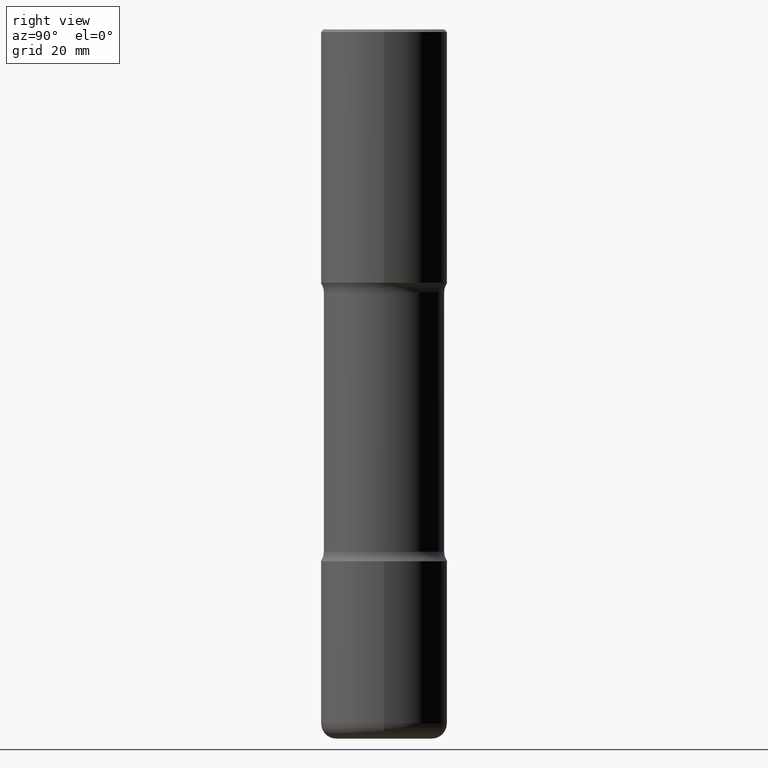
[diagram: clean part render]
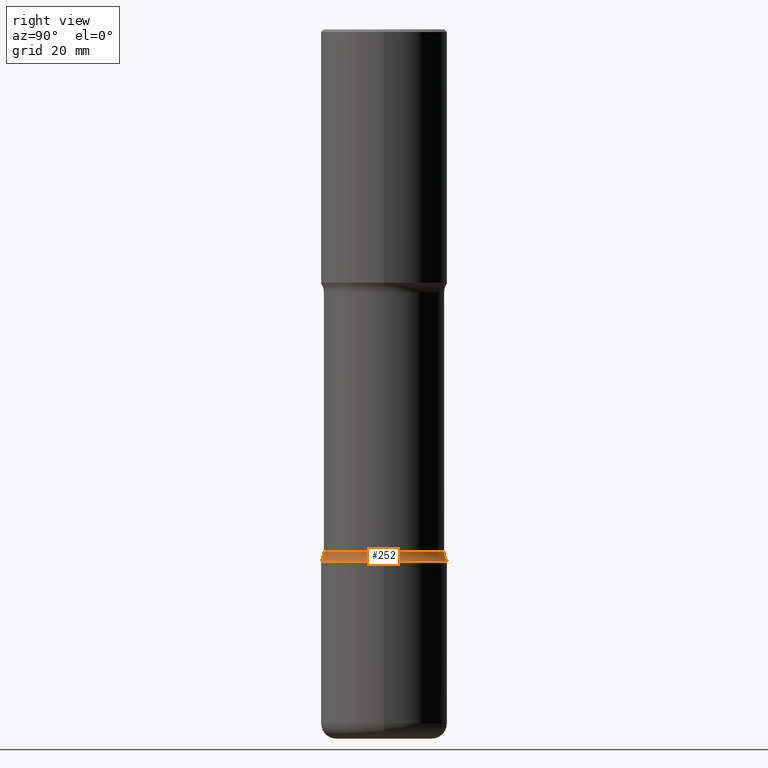
[diagram: same view with one face highlighted and labeled with its STEP entity id]
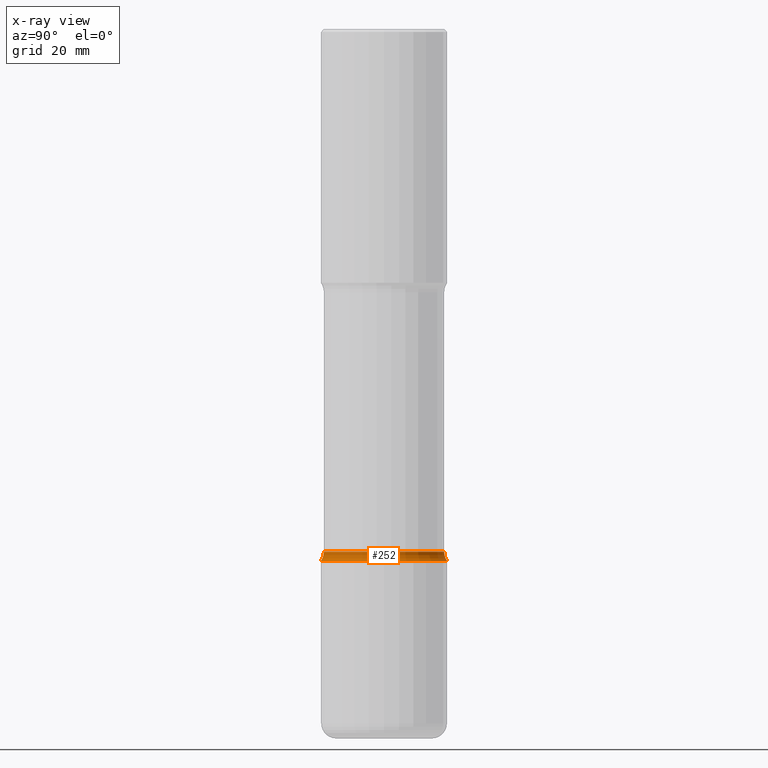
[diagram: x-ray of the same camera — body ghosted, the highlighted face saturated]
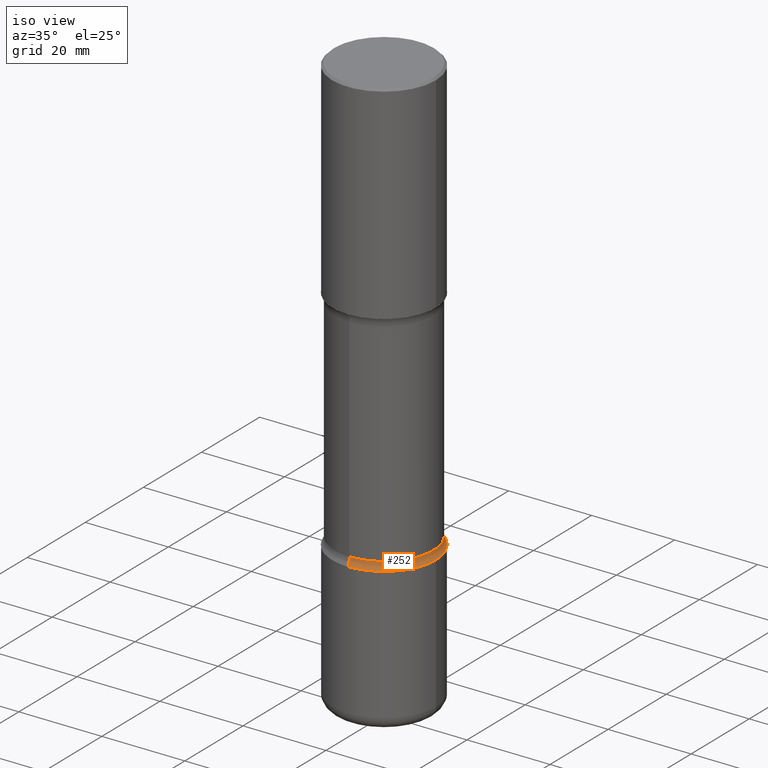
[diagram: same view with one face highlighted and labeled with its STEP entity id]
A machine part, right view. The second image highlights one B-rep face of the part: STEP entity #252.
The next image is the same camera in x-ray: the body ghosted, the highlighted face saturated — about 0% of this face is hidden behind the body in this view.
A second angle (iso view) of the same face is appended — the face is thin or edge-on in the first view.
In plain terms, the highlighted toroidal blend (fillet) surface has major radius 15.0495 mm and minor (blend) radius 3.175 mm.
Its self-contained STEP definition (entity closure, byte-faithful):
#5 = TOROIDAL_SURFACE ( 'NONE', #440, 0.5925000000000001377, 0.1250000000000001943 ) ;
#8 = EDGE_CURVE ( 'NONE', #421, #312, #518, .T. ) ;
#27 = CARTESIAN_POINT ( 'NONE',  ( 9.921656725330168688E-29, -1.418024957656984198E-14, -4.059268949423747053 ) ) ;
#32 = VERTEX_POINT ( 'NONE', #199 ) ;
#65 = AXIS2_PLACEMENT_3D ( 'NONE', #360, #540, #309 ) ;
#81 = CARTESIAN_POINT ( 'NONE',  ( 1.010907895100811684E-28, -1.443308555850979562E-14, -4.133799999999999919 ) ) ;
#84 = CIRCLE ( 'NONE', #247, 0.4674999999999999156 ) ;
#85 = VERTEX_POINT ( 'NONE', #206 ) ;
#104 = AXIS2_PLACEMENT_3D ( 'NONE', #81, #417, #254 ) ;
#118 = CARTESIAN_POINT ( 'NONE',  ( -3.376394089603158865E-15, -0.4921500000000145758, -4.133799999999998143 ) ) ;
#143 = EDGE_LOOP ( 'NONE', ( #342, #146, #494, #209 ) ) ;
#146 = ORIENTED_EDGE ( 'NONE', *, *, #532, .F. ) ;
#152 = CARTESIAN_POINT ( 'NONE',  ( -4.064845063679533496E-15, -0.5925000000000143485, -4.059268949423744388 ) ) ;
#169 = CIRCLE ( 'NONE', #104, 0.4921500000000001984 ) ;
#190 = CARTESIAN_POINT ( 'NONE',  ( -3.291838451780624866E-15, -0.4675000000000141265, -4.059268949423745276 ) ) ;
#199 = CARTESIAN_POINT ( 'NONE',  ( 3.436665081823398723E-15, 0.4921499999999857100, -4.133800000000001695 ) ) ;
#206 = CARTESIAN_POINT ( 'NONE',  ( 3.264535051818428216E-15, 0.4674999999999857048, -4.059268949423747941 ) ) ;
#209 = ORIENTED_EDGE ( 'NONE', *, *, #451, .T. ) ;
#214 = DIRECTION ( 'NONE',  ( 6.982962677686266711E-15, 1.000000000000000000, -3.506115072082477581E-15 ) ) ;
#223 = FACE_OUTER_BOUND ( 'NONE', #143, .T. ) ;
#227 = DIRECTION ( 'NONE',  ( 2.514686486086695474E-29, -3.392357681598433540E-15, -1.000000000000000000 ) ) ;
#247 = AXIS2_PLACEMENT_3D ( 'NONE', #27, #379, #214 ) ;
#252 = ADVANCED_FACE ( 'NONE', ( #223 ), #5, .F. ) ;
#254 = DIRECTION ( 'NONE',  ( 6.982962677686266711E-15, 1.000000000000000000, -3.330506545156064679E-15 ) ) ;
#297 = EDGE_CURVE ( 'NONE', #32, #85, #556, .T. ) ;
#309 = DIRECTION ( 'NONE',  ( -6.982962677686265133E-15, -1.000000000000000000, 0.000000000000000000 ) ) ;
#312 = VERTEX_POINT ( 'NONE', #190 ) ;
#314 = DIRECTION ( 'NONE',  ( 6.860497997771532351E-15, 1.000000000000000000, 0.000000000000000000 ) ) ;
#342 = ORIENTED_EDGE ( 'NONE', *, *, #8, .F. ) ;
#356 = AXIS2_PLACEMENT_3D ( 'NONE', #152, #504, #314 ) ;
#360 = CARTESIAN_POINT ( 'NONE',  ( 4.137405386529213527E-15, 0.5924999999999859268, -4.059268949423748829 ) ) ;
#363 = CARTESIAN_POINT ( 'NONE',  ( 9.926815591731683841E-29, -1.417286178625843291E-14, -4.059268949423747053 ) ) ;
#379 = DIRECTION ( 'NONE',  ( 2.514686486086695474E-29, -3.392357681598433540E-15, -1.000000000000000000 ) ) ;
#406 = DIRECTION ( 'NONE',  ( 6.982962677686265133E-15, 1.000000000000000000, -3.392357681598433540E-15 ) ) ;
#417 = DIRECTION ( 'NONE',  ( 2.514686486086695474E-29, -3.392357681598433540E-15, -1.000000000000000000 ) ) ;
#421 = VERTEX_POINT ( 'NONE', #118 ) ;
#440 = AXIS2_PLACEMENT_3D ( 'NONE', #363, #227, #406 ) ;
#451 = EDGE_CURVE ( 'NONE', #85, #312, #84, .T. ) ;
#494 = ORIENTED_EDGE ( 'NONE', *, *, #297, .T. ) ;
#504 = DIRECTION ( 'NONE',  ( 1.000000000000000000, -6.860497997771530774E-15, 4.842012794319787643E-29 ) ) ;
#518 = CIRCLE ( 'NONE', #356, 0.1250000000000001665 ) ;
#532 = EDGE_CURVE ( 'NONE', #32, #421, #169, .T. ) ;
#540 = DIRECTION ( 'NONE',  ( -1.000000000000000000, 6.982962677686265922E-15, -4.883557194083112340E-29 ) ) ;
#556 = CIRCLE ( 'NONE', #65, 0.1250000000000001665 ) ;